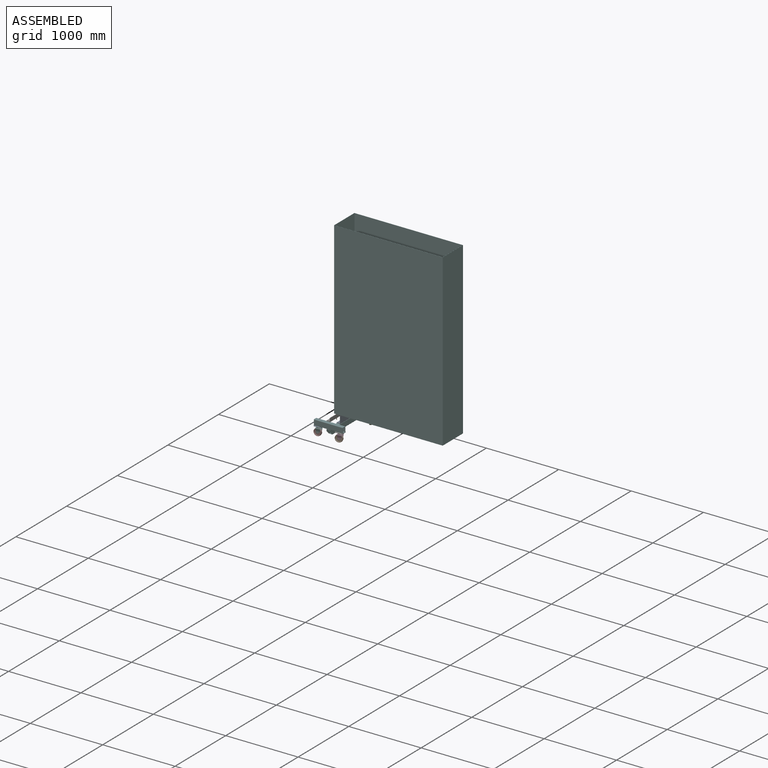
[diagram: assembled view]
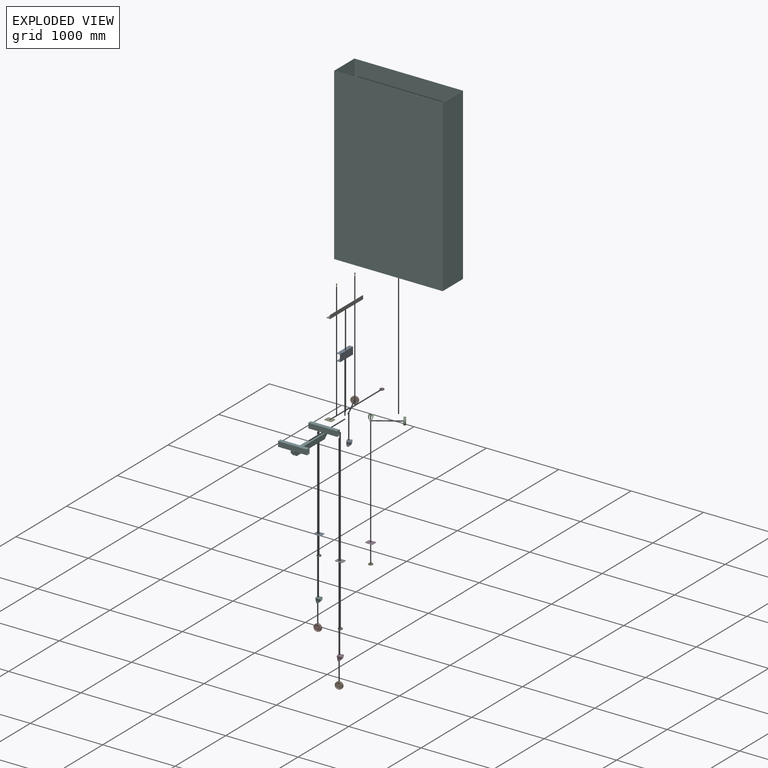
[diagram: exploded view]
GUIDED TOUR — MATED ASSEMBLY (Onshape document 137cd74a90b4f0a515ca259d, AutoMate assembly 137cd74a90b4f0a515ca259d_8e6a756ab5e0b427ab57e6c1_0fc6d9590e1579e8c9cf0c67_default)

This assembly has 22 components, labeled P0..P21 below (a component is one placed occurrence of a part; the same part can appear more than once), held together by 21 mates. A mate is a constraint between two components; its type names the relative motion it leaves free:
  FASTENED — locks the two components together rigidly (no relative motion),
  REVOLUTE — leaves rotation about the listed axis free (a hinge).
Axis/direction vectors are unit vectors and 'through' points are millimeter coordinates, both in the assembly's world frame.

MATES
  1. REVOLUTE "Revolute 2": P2 <-> P21, axis (0.000, 0.000, -1.000) through (-880.53, -330.40, -224.81) mm
  2. REVOLUTE "Revolute 4": P6 <-> P13, axis (0.000, 0.000, 1.000) through (-533.03, -330.40, -204.81) mm
  3. REVOLUTE "Revolute 5": P19 <-> P13, axis (0.000, 0.000, 1.000) through (-533.03, 269.60, -204.81) mm
  4. REVOLUTE "Revolute 2": P9 <-> P3, axis (0.000, 0.000, -1.000) through (-585.53, -330.40, -224.81) mm
  5. REVOLUTE "Revolute 1": P17 <-> P3, axis (0.180, -0.984, 0.000) through (-597.59, -347.85, -285.45) mm
  6. FASTENED "Fastened 2": P7 <-> P5, direction (0.000, 0.000, -1.000) through (-720.53, 149.60, -52.81) mm
  7. FASTENED "Fastened 7": P13 <-> P0, direction (0.000, 0.000, -1.000) through (-933.03, -330.40, -204.81) mm
  8. REVOLUTE "Revolute 3": P6 <-> P9, axis (0.000, 0.000, -1.000) through (-585.53, -330.40, -212.81) mm
  9. REVOLUTE "Revolute 3": P19 <-> P4, axis (0.000, 0.000, -1.000) through (-585.53, 269.60, -212.81) mm
  10. REVOLUTE "Revolute 3": P0 <-> P2, axis (0.000, 0.000, -1.000) through (-880.53, -330.40, -212.81) mm
  11. FASTENED "Fastened 1": P5 <-> P14, direction (0.000, 1.000, 0.000) through (-740.53, -30.40, -54.81) mm
  12. FASTENED "Fastened 6": P12 <-> P13, direction (0.000, 0.000, 1.000) through (-933.03, 269.60, -210.81) mm
  13. FASTENED "Fastened 3": P5 <-> P20, direction (0.000, 0.000, 1.000) through (-720.53, -210.40, -52.81) mm
  14. REVOLUTE "Revolute 3": P12 <-> P11, axis (0.000, 0.000, -1.000) through (-880.53, 269.60, -218.81) mm
  15. REVOLUTE "Revolute 2": P11 <-> P8, axis (0.000, 0.000, -1.000) through (-880.53, 269.60, -230.81) mm
  16. REVOLUTE "Revolute 1": P10 <-> P18, axis (0.834, 0.551, 0.000) through (-564.75, 265.34, -285.45) mm
  17. REVOLUTE "Revolute 1": P15 <-> P21, axis (0.074, -0.997, 0.000) through (-894.37, -346.47, -285.45) mm
  18. FASTENED "Fastened 4": P16 <-> P14, direction (0.000, 0.000, 1.000) through (-733.03, -110.40, -104.81) mm
  19. REVOLUTE "Revolute 2": P4 <-> P18, axis (0.000, 0.000, -1.000) through (-585.53, 269.60, -224.81) mm
  20. FASTENED "Fastened 5": P13 <-> P16, direction (0.000, 0.000, 1.000) through (-733.03, 49.60, -204.81) mm
  21. REVOLUTE "Revolute 1": P1 <-> P8, axis (0.402, -0.916, 0.000) through (-888.24, 249.84, -291.45) mm

ASSEMBLY ORDER
  1. P18 — the base component [order verified]
  2. P10 [order verified]
  3. P8 [order verified]
  4. P1 [order verified]
  5. P3 [order verified]
  6. P17 [order verified]
  7. P21 [order verified]
  8. P15 [order verified]
  9. P13 [order verified]
  10. P16 [order verified]
  11. P20 [order verified]
  12. P7 [order verified]
  13. P4 [order verified]
  14. P12 [order verified]
  15. P2 [order verified]
  16. P9 [order verified]
  17. P0 [order verified]
  18. P6 [order verified]
  19. P11 [order verified]
  20. P19 [order verified]
  21. P14 [order verified]
  22. P5 [order verified]
(P1, P10 verified with a relaxed clearance tolerance: the source model stores slight part interference there.)
Order-tag legend:
  [order verified] — this step's position reverses a verified removal order: the component was checked to insert without passing through the ones already placed.

Of the 22 components, 1 carries the full construction recipe — the FeatureScript program that regenerates the part's solid from scratch; the rest are supplied as boundary geometry only.
Because this assembly has more than 12 components, the tour below covers the 12 most significant ones individually (every recipe-attached component first, then the largest by part volume), in assembly order; the remaining 10 are summarized together in a grouped section at the end.
Each toured component is shown spotlighted twice — in the assembled view, then in the exploded view, where a leader line traces a displaced component back to its assembled socket (saturated green if recipe-attached, orange if geometry-only; every other component desaturated gray) — followed by its recipe or geometry summary and the mates that hold it.
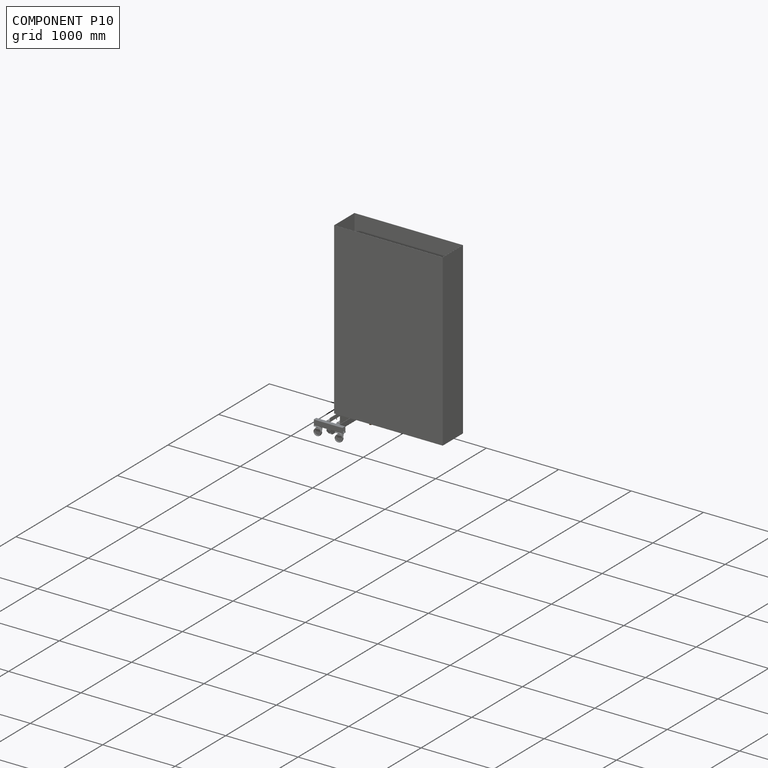
[diagram: component P10 — assembled]
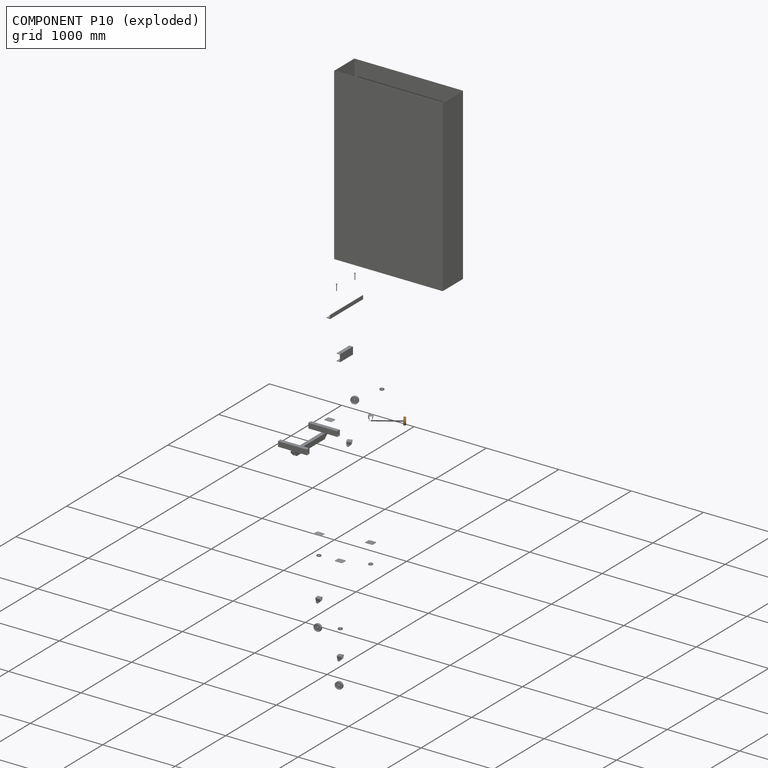
[diagram: component P10 — exploded]
COMPONENT P10 — geometry summary (no construction recipe available for this part):
  bounding box: 104.4 x 104.4 x 30.0 mm
  B-rep topology: 1 solid, 22 faces, 76 edges
  volume: 100161 mm^3 (31% of its bounding box)
  symmetry: 2-fold rotationally symmetric about the x axis; revolution-symmetric about the y axis through its bounding-box center; 2-fold rotationally symmetric about the z axis; mirror-symmetric across its x mid-plane, y mid-plane, z mid-plane
Held by: REVOLUTE mate "Revolute 1" to P18.
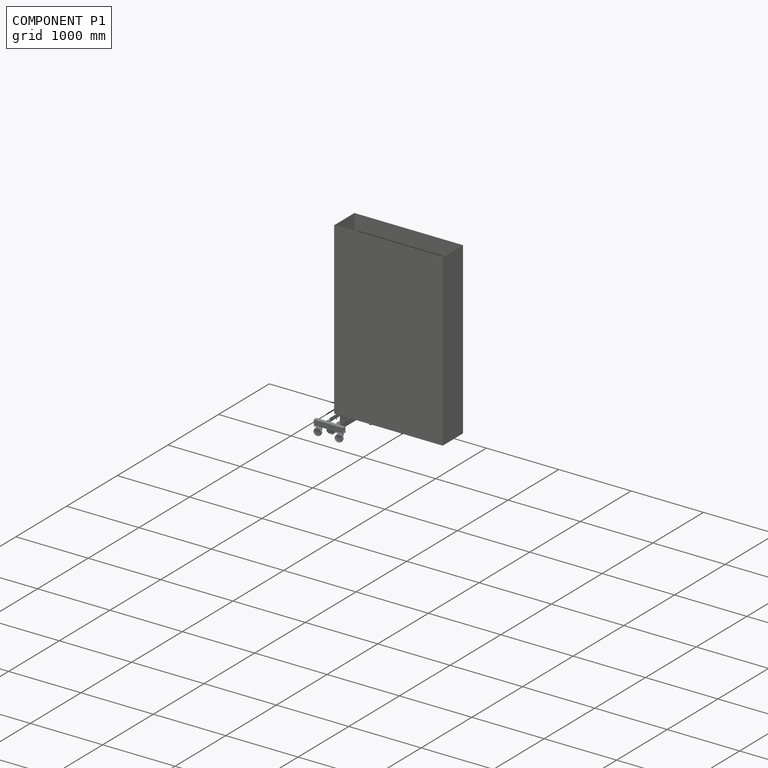
[diagram: component P1 — assembled]
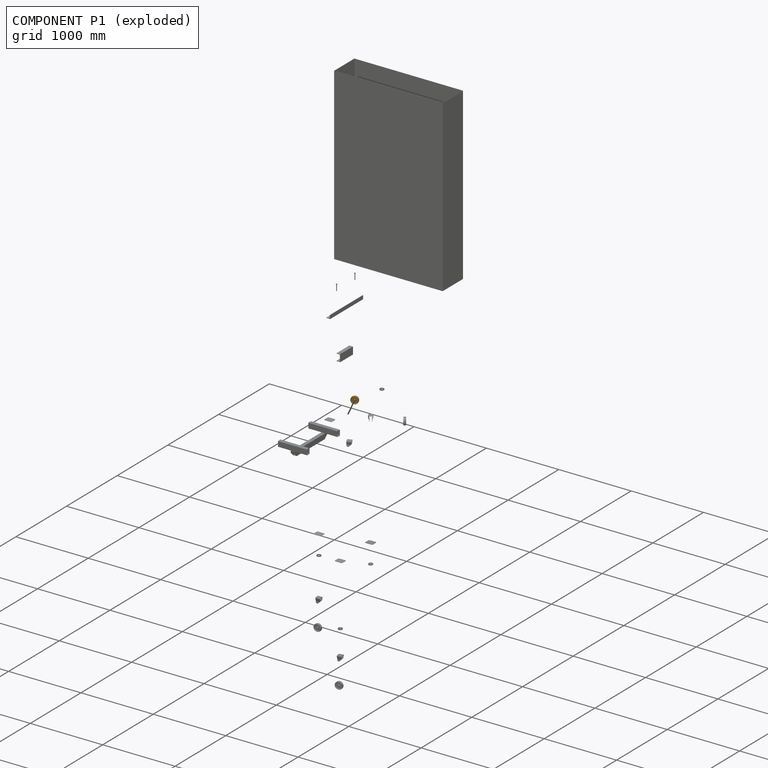
[diagram: component P1 — exploded]
COMPONENT P1 — geometry summary (no construction recipe available for this part):
  bounding box: 104.4 x 104.4 x 30.0 mm
  B-rep topology: 1 solid, 22 faces, 76 edges
  volume: 100161 mm^3 (31% of its bounding box)
  symmetry: 2-fold rotationally symmetric about the x axis; revolution-symmetric about the y axis through its bounding-box center; 2-fold rotationally symmetric about the z axis; mirror-symmetric across its x mid-plane, y mid-plane, z mid-plane
Held by: REVOLUTE mate "Revolute 1" to P8.
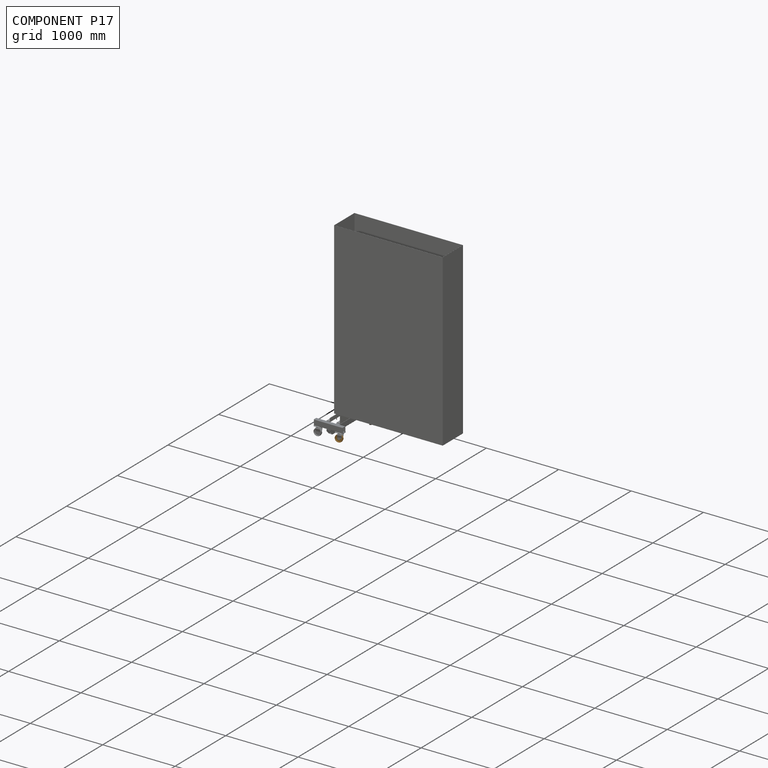
[diagram: component P17 — assembled]
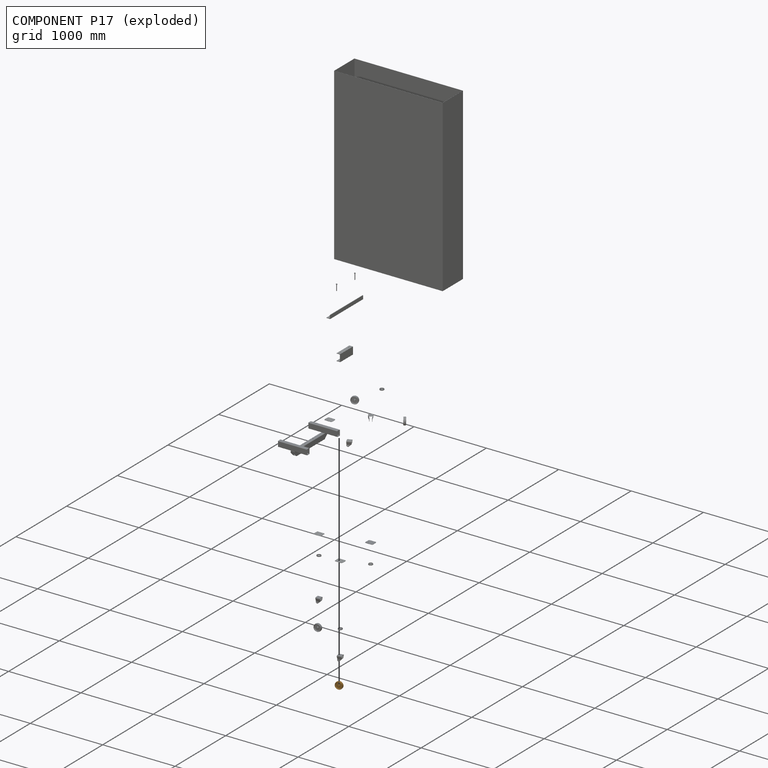
[diagram: component P17 — exploded]
COMPONENT P17 — geometry summary (no construction recipe available for this part):
  bounding box: 104.4 x 104.4 x 30.0 mm
  B-rep topology: 1 solid, 22 faces, 76 edges
  volume: 100161 mm^3 (31% of its bounding box)
  symmetry: 2-fold rotationally symmetric about the x axis; revolution-symmetric about the y axis through its bounding-box center; 2-fold rotationally symmetric about the z axis; mirror-symmetric across its x mid-plane, y mid-plane, z mid-plane
Held by: REVOLUTE mate "Revolute 1" to P3.
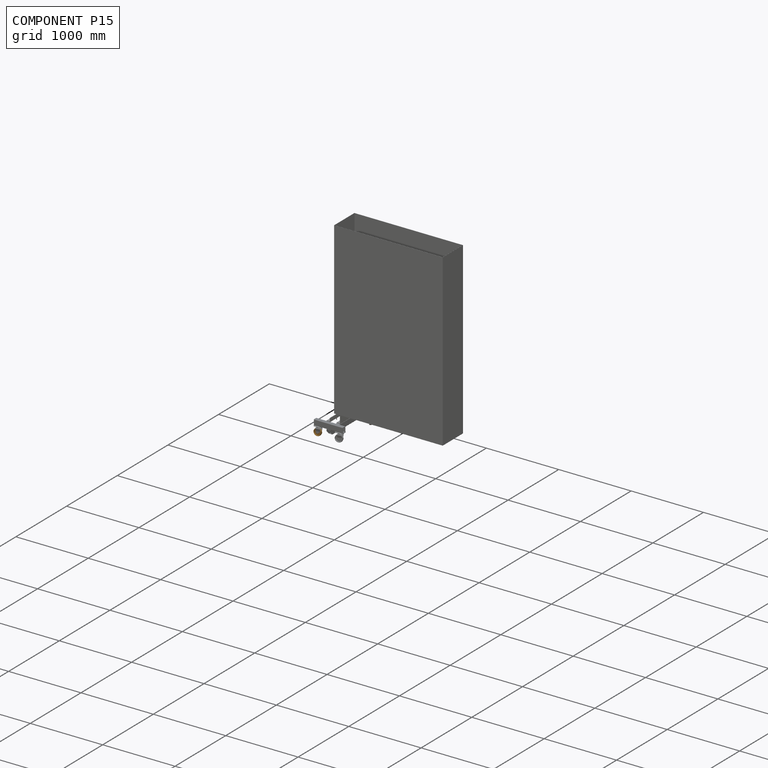
[diagram: component P15 — assembled]
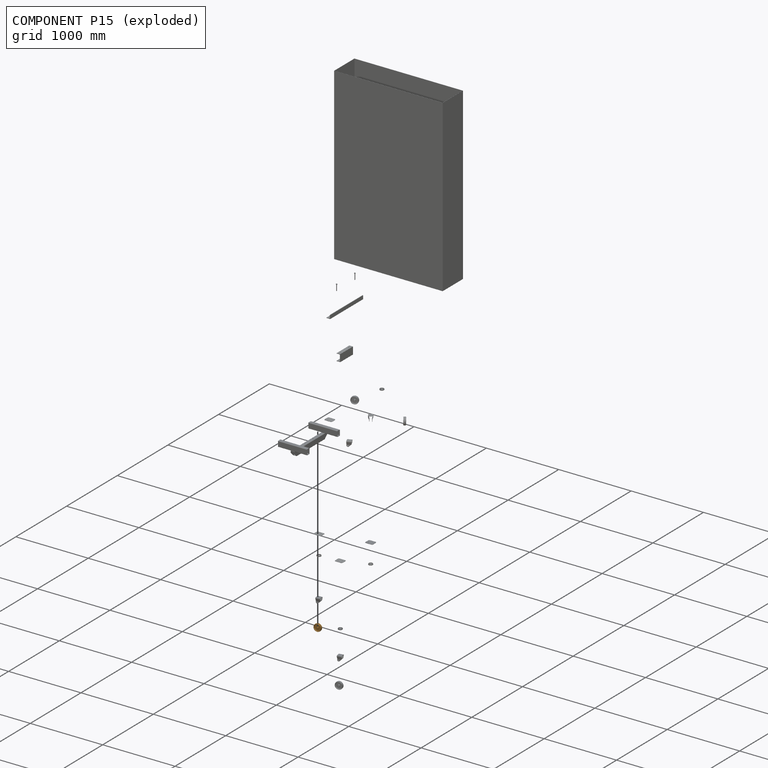
[diagram: component P15 — exploded]
COMPONENT P15 — geometry summary (no construction recipe available for this part):
  bounding box: 104.4 x 104.4 x 30.0 mm
  B-rep topology: 1 solid, 22 faces, 76 edges
  volume: 100161 mm^3 (31% of its bounding box)
  symmetry: 2-fold rotationally symmetric about the x axis; revolution-symmetric about the y axis through its bounding-box center; 2-fold rotationally symmetric about the z axis; mirror-symmetric across its x mid-plane, y mid-plane, z mid-plane
Held by: REVOLUTE mate "Revolute 1" to P21.
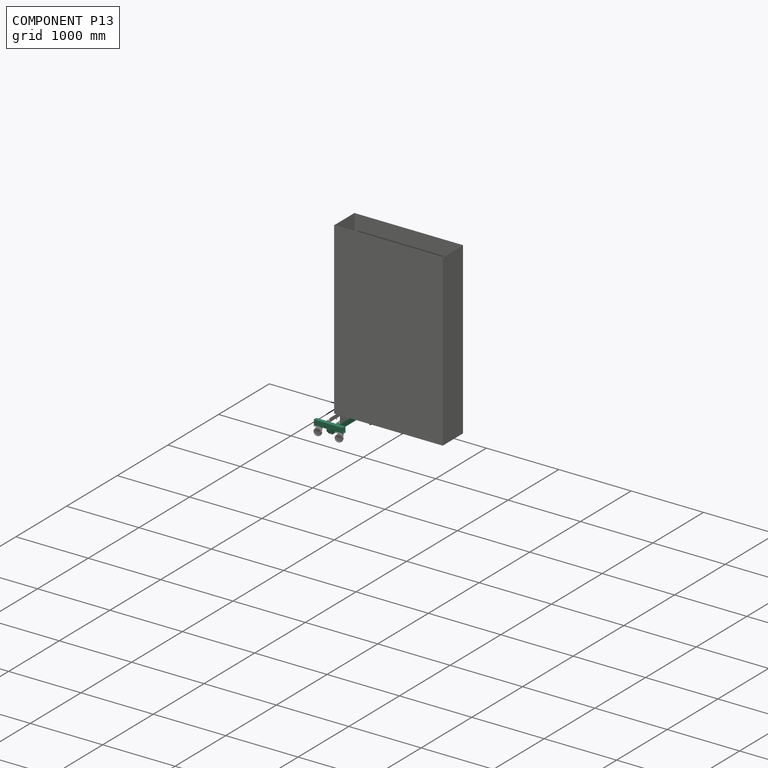
[diagram: component P13 — assembled]
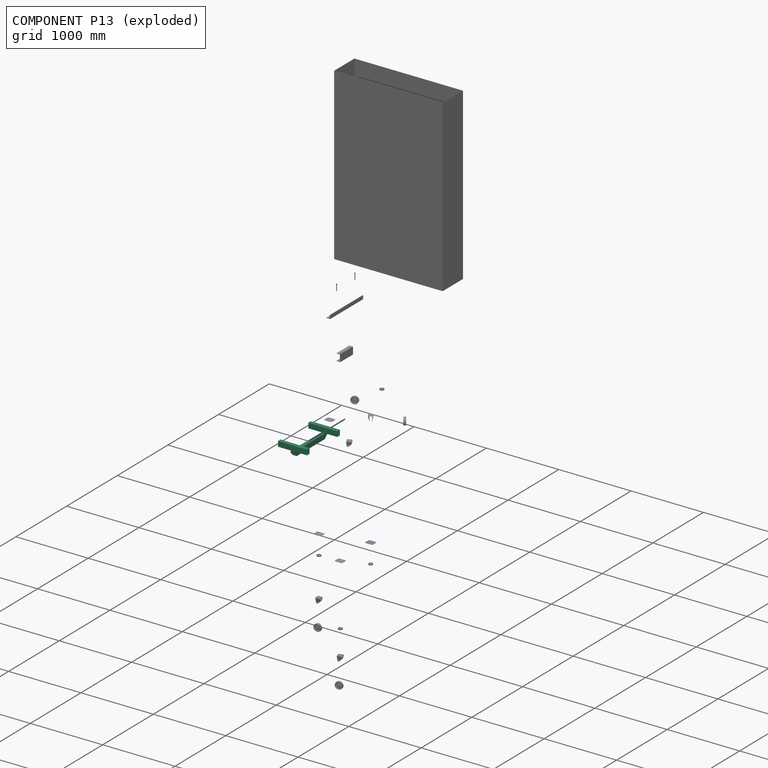
[diagram: component P13 — exploded]
COMPONENT P13 — recipe-attached (CADFS 00106377, mesh-verified: the recipe's output STEP matches this component's geometry to below the mesh-comparison resolution (tessellation chordal tolerance ~1.17 mm)).
Held by: REVOLUTE mate "Revolute 4" to P6; REVOLUTE mate "Revolute 5" to P19; FASTENED mate "Fastened 7" to P0; FASTENED mate "Fastened 6" to P12; FASTENED mate "Fastened 5" to P16.
Construction recipe (FeatureScript — the CAD program that rebuilds this solid; sketch coordinates are in the units given by the * unit suffixes, e.g. mm):

FeatureScript 1511;
import(path : "onshape/std/geometry.fs", version : "1511.0");
import(path : "onshape/std/common.fs", version : "1511.0");
const mm = millimeter;
const VERTEX = EntityType.VERTEX;
const EDGE = EntityType.EDGE;
const FACE = EntityType.FACE;
const BODY = EntityType.BODY;
function v(x, y){return vector(x, y);}
function OD(order){return orderDisambiguation(order);}
function OSD(set){return originalSetDisambiguation(set);}
function TD(topology){return topologyDisambiguation(topology);}
function TDD(query){return trueDependencyDisambiguation(query);}
function sQuery(a, b, c) {return sketchEntityQuery(a, b, c);}

annotation { "Feature Type Name" : "Feature", "Feature Type Description" : "" }
export const myFeature = defineFeature(function(context is Context, id is Id, definition is map)
    precondition{}
    {
        {
            var Q0;
            Q0=qCreatedBy(makeId("Front.planeOp"),FACE);
            var sketch = newSketch(context, id + "F0", { "sketchPlane" : qUnion([Q0])});
            skLineSegment(sketch, "E0.bottom", {"start": v(20, -37.5) * mm, "end": v(-20, -37.5) * mm});
            skLineSegment(sketch, "E0.top", {"start": v(20, 37.5) * mm, "end": v(-20, 37.5) * mm});
            skLineSegment(sketch, "E0.left", {"start": v(25, -32.5) * mm, "end": v(25, 32.5) * mm});
            skLineSegment(sketch, "E0.right", {"start": v(-25, -32.5) * mm, "end": v(-25, 32.5) * mm});
            skPoint(sketch, "E0.middle", {"position": v(0, 0) * mm});
            skPoint(sketch, "E1.visualSharp", {"position": v(-25, 37.5) * mm});
            skArc(sketch, "E1.filletArc", {"start": v(-20, 37.5) * mm, "mid": v(-23.54, 36.04) * mm, "end": v(-25, 32.5) * mm});
            skPoint(sketch, "E2.visualSharp", {"position": v(25, 37.5) * mm});
            skArc(sketch, "E2.filletArc", {"start": v(25, 32.5) * mm, "mid": v(23.54, 36.04) * mm, "end": v(20, 37.5) * mm});
            skPoint(sketch, "E3.visualSharp", {"position": v(25, -37.5) * mm});
            skArc(sketch, "E3.filletArc", {"start": v(20, -37.5) * mm, "mid": v(23.54, -36.04) * mm, "end": v(25, -32.5) * mm});
            skPoint(sketch, "E4.visualSharp", {"position": v(-25, -37.5) * mm});
            skArc(sketch, "E4.filletArc", {"start": v(-25, -32.5) * mm, "mid": v(-23.54, -36.04) * mm, "end": v(-20, -37.5) * mm});
            skLineSegment(sketch, "E5.0", {"start": v(-20, -32.5) * mm, "end": v(-20, 32.5) * mm});
            skLineSegment(sketch, "E5.1", {"start": v(20, -32.5) * mm, "end": v(-20, -32.5) * mm});
            skLineSegment(sketch, "E5.2", {"start": v(20, -32.5) * mm, "end": v(20, 32.5) * mm});
            skLineSegment(sketch, "E5.3", {"start": v(20, 32.5) * mm, "end": v(-20, 32.5) * mm});
            skSolve(sketch);
        }
        {
            var Q0;
            Q0 = qSketchRegion(id + "F0", true);
            extrude(context, id + "F1", {"entities" : qUnion([Q0]), "oppositeDirection" : true, "depth" : 650 * mm});
        }
        {
            var Q0;
            Q0=makeQuery(id+"F1.opExtrude","SWEPT_FACE",FACE,{"disambiguationData":[OSD([sQuery(id+"F0.wireOp",EDGE,"E0.top")])]});
            var sketch = newSketch(context, id + "F2", { "sketchPlane" : qUnion([Q0])});
            skPoint(sketch, "E6", {"position": v(0, 0) * mm});
            skLineSegment(sketch, "E7", {"start": v(-20, 325) * mm, "end": v(20, 325) * mm, "construction": true});
            skLineSegment(sketch, "E8", {"start": v(0, 325) * mm, "end": v(0, 245) * mm, "construction": true});
            skLineSegment(sketch, "E9", {"start": v(0, 325) * mm, "end": v(0, 405) * mm, "construction": true});
            skCircle(sketch, "E10", {"center": v(0, 245) * mm, "radius": 6 * mm});
            skCircle(sketch, "E11", {"center": v(0, 405) * mm, "radius": 6 * mm});
            skSolve(sketch);
        }
        {
            var Q0;
            Q0 = qSketchRegion(id + "F2", true);
            extrude(context, id + "F3", {"entities" : qUnion([Q0]), "operationType" : NewBodyOperationType.REMOVE, "endBound" : BoundingType.UP_TO_NEXT, "oppositeDirection" : true, "depth" : 25 * mm});
        }
        {
            var Q0;
            Q0=makeQuery(id+"F1.opExtrude","SWEPT_FACE",FACE,{"disambiguationData":[OSD([sQuery(id+"F0.wireOp",EDGE,"E0.top")])]});
            var sketch = newSketch(context, id + "F4", { "sketchPlane" : qUnion([Q0])});
            skLineSegment(sketch, "E12.bottom", {"start": v(200, 0) * mm, "end": v(-200, 0) * mm, "construction": true});
            skLineSegment(sketch, "E12.top", {"start": v(200, 50) * mm, "end": v(-200, 50) * mm, "construction": true});
            skLineSegment(sketch, "E12.left", {"start": v(200, 0) * mm, "end": v(200, 50) * mm, "construction": true});
            skLineSegment(sketch, "E12.right", {"start": v(-200, 0) * mm, "end": v(-200, 50) * mm, "construction": true});
            skPoint(sketch, "E12.middle", {"position": v(0, 25) * mm});
            skLineSegment(sketch, "E13", {"start": v(0, 50) * mm, "end": v(0, 0) * mm, "construction": true});
            skLineSegment(sketch, "E14", {"start": v(-20, 325) * mm, "end": v(20, 325) * mm, "construction": true});
            skSolve(sketch);
        }
        {
            var Q0;
            Q0=qCreatedBy(makeId("Right.planeOp"),FACE);
            var sketch = newSketch(context, id + "F5", { "sketchPlane" : qUnion([Q0])});
            skLineSegment(sketch, "E15.bottom", {"start": v(5, 37.5) * mm, "end": v(45, 37.5) * mm});
            skLineSegment(sketch, "E15.top", {"start": v(5, 112.5) * mm, "end": v(45, 112.5) * mm});
            skLineSegment(sketch, "E15.left", {"start": v(0, 42.5) * mm, "end": v(0, 107.5) * mm});
            skLineSegment(sketch, "E15.right", {"start": v(50, 42.5) * mm, "end": v(50, 107.5) * mm});
            skPoint(sketch, "E16.visualSharp", {"position": v(50, 112.5) * mm});
            skArc(sketch, "E16.filletArc", {"start": v(50, 107.5) * mm, "mid": v(48.54, 111.04) * mm, "end": v(45, 112.5) * mm});
            skPoint(sketch, "E17.visualSharp", {"position": v(0, 37.5) * mm});
            skArc(sketch, "E17.filletArc", {"start": v(0, 42.5) * mm, "mid": v(1.46, 38.96) * mm, "end": v(5, 37.5) * mm});
            skPoint(sketch, "E18.visualSharp", {"position": v(50, 37.5) * mm});
            skArc(sketch, "E18.filletArc", {"start": v(45, 37.5) * mm, "mid": v(48.54, 38.96) * mm, "end": v(50, 42.5) * mm});
            skPoint(sketch, "E19.visualSharp", {"position": v(0, 112.5) * mm});
            skArc(sketch, "E19.filletArc", {"start": v(5, 112.5) * mm, "mid": v(1.46, 111.04) * mm, "end": v(0, 107.5) * mm});
            skLineSegment(sketch, "E20.0", {"start": v(5, 42.5) * mm, "end": v(5, 107.5) * mm});
            skLineSegment(sketch, "E20.1", {"start": v(5, 42.5) * mm, "end": v(45, 42.5) * mm});
            skLineSegment(sketch, "E20.2", {"start": v(45, 42.5) * mm, "end": v(45, 107.5) * mm});
            skLineSegment(sketch, "E20.3", {"start": v(5, 107.5) * mm, "end": v(45, 107.5) * mm});
            skSolve(sketch);
        }
        {
            var Q0;
            Q0 = qSketchRegion(id + "F5", true);
            extrude(context, id + "F6", {"entities" : qUnion([Q0]), "operationType" : NewBodyOperationType.ADD, "endBound" : BoundingType.SYMMETRIC, "depth" : 400 * mm});
        }
        {
            var Q0;
            Q0=sQuery(id+"F4.wireOp",VERTEX,"E14.start");
            var Q1;
            Q1=makeQuery(id+"F1.opExtrude","CAP_FACE",FACE,{"disambiguationData":[OSD([sQuery(id+"F0.wireOp",EDGE,"E0.bottom"),sQuery(id+"F0.wireOp",EDGE,"E0.top"),sQuery(id+"F0.wireOp",EDGE,"E0.left"),sQuery(id+"F0.wireOp",EDGE,"E0.right"),sQuery(id+"F0.wireOp",EDGE,"E1.filletArc"),sQuery(id+"F0.wireOp",EDGE,"E2.filletArc"),sQuery(id+"F0.wireOp",EDGE,"E3.filletArc"),sQuery(id+"F0.wireOp",EDGE,"E4.filletArc"),sQuery(id+"F0.wireOp",EDGE,"E5.0"),sQuery(id+"F0.wireOp",EDGE,"E5.1"),sQuery(id+"F0.wireOp",EDGE,"E5.2"),sQuery(id+"F0.wireOp",EDGE,"E5.3")])],"isStart":true});
            cPlane(context, id + "F7", {"entities" : qUnion([Q0, Q1]), "cplaneType" : CPlaneType.PLANE_POINT, "offset" : 25 * mm, "width" : 150 * mm, "height" : 150 * mm});
        }
        {
            var Q0;
            Q0=makeQuery(id+"F1.opExtrude","SWEPT_BODY",BODY,{"disambiguationData":[OSD([sQuery(id+"F0.wireOp",EDGE,"E0.bottom"),sQuery(id+"F0.wireOp",EDGE,"E0.top"),sQuery(id+"F0.wireOp",EDGE,"E0.left"),sQuery(id+"F0.wireOp",EDGE,"E0.right"),sQuery(id+"F0.wireOp",EDGE,"E1.filletArc"),sQuery(id+"F0.wireOp",EDGE,"E2.filletArc"),sQuery(id+"F0.wireOp",EDGE,"E3.filletArc"),sQuery(id+"F0.wireOp",EDGE,"E4.filletArc"),sQuery(id+"F0.wireOp",EDGE,"E5.0"),sQuery(id+"F0.wireOp",EDGE,"E5.1"),sQuery(id+"F0.wireOp",EDGE,"E5.2"),sQuery(id+"F0.wireOp",EDGE,"E5.3")])]});
            var Q1;
            Q1=qCreatedBy(id+"F7.planeOp",FACE);
            mirror(context, id + "F8", {"operationType" : NewBodyOperationType.ADD, "entities" : qUnion([Q0]), "mirrorPlane" : qUnion([Q1])});
        }
        {
            var Q0;
            Q0=makeQuery(id+"F1.opExtrude","CAP_EDGE",EDGE,{"disambiguationData":[OSD([sQuery(id+"F0.wireOp",EDGE,"E0.bottom")])],"isStart":true});
            chamfer(context, id + "F9", {"entities" : qUnion([Q0]), "width" : 50 * mm});
        }
        {
            var Q0;
            Q0=makeQuery(id+"F1.opExtrude","CAP_EDGE",EDGE,{"disambiguationData":[OSD([sQuery(id+"F0.wireOp",EDGE,"E0.bottom")])],"isStart":false});
            chamfer(context, id + "F10", {"entities" : qUnion([Q0]), "width" : 50 * mm});
        }
    });
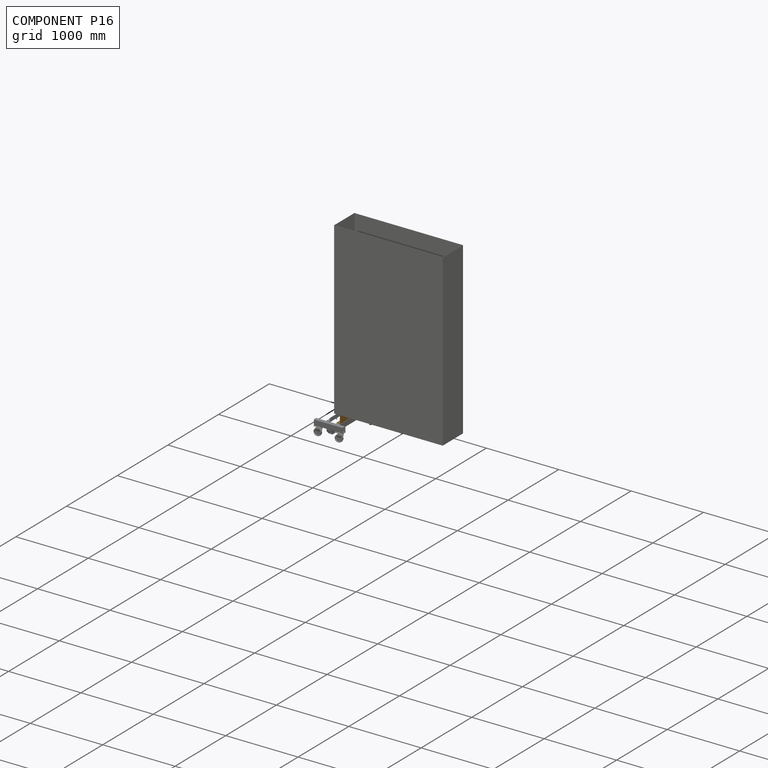
[diagram: component P16 — assembled]
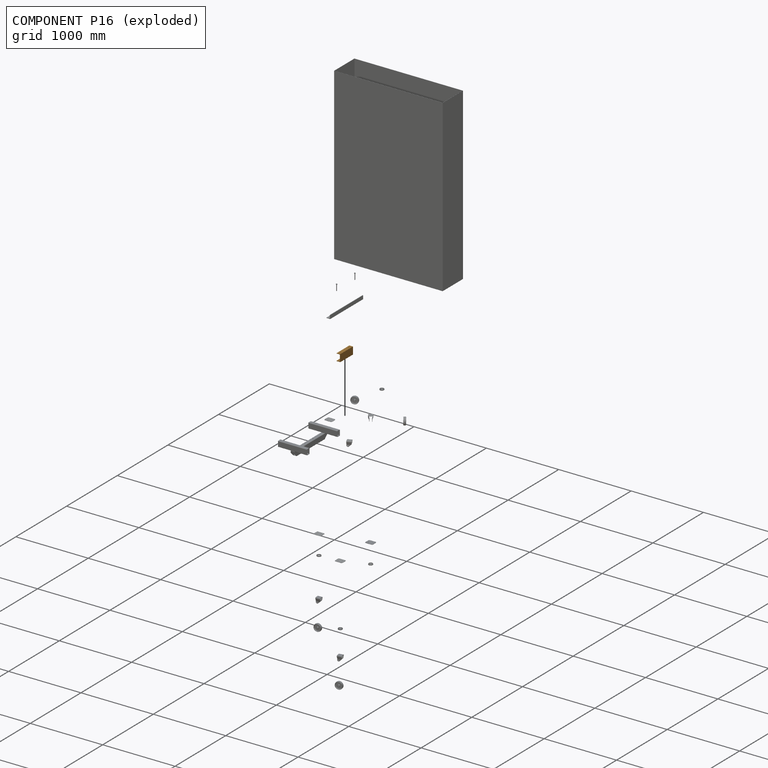
[diagram: component P16 — exploded]
COMPONENT P16 — geometry summary (no construction recipe available for this part):
  bounding box: 250.0 x 100.0 x 50.0 mm
  B-rep topology: 1 solid, 16 faces, 88 edges
  volume: 281497 mm^3 (23% of its bounding box)
  symmetry: 2-fold rotationally symmetric about the x axis; mirror-symmetric across its y mid-plane, z mid-plane
Held by: FASTENED mate "Fastened 4" to P14; FASTENED mate "Fastened 5" to P13.
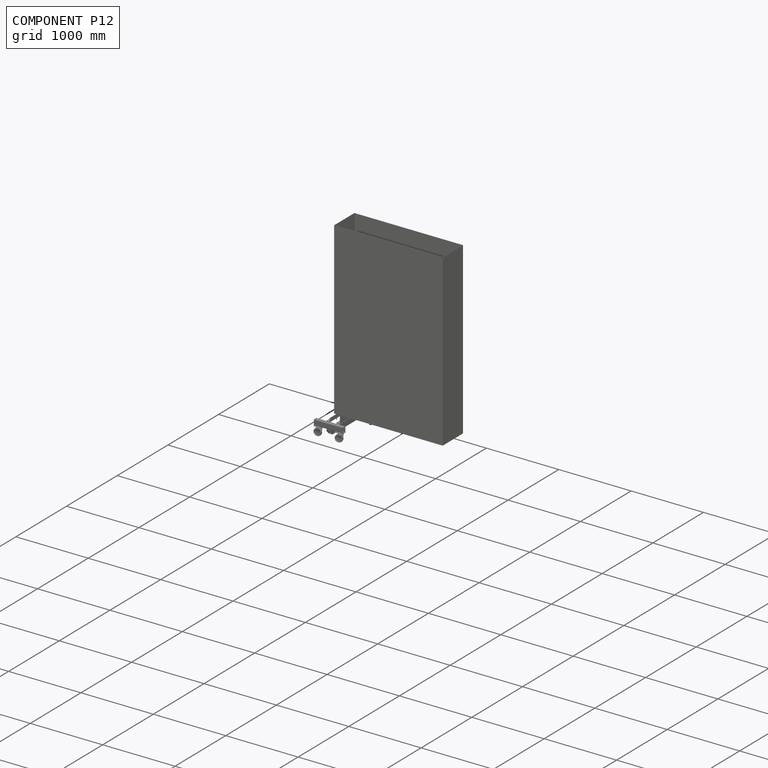
[diagram: component P12 — assembled]
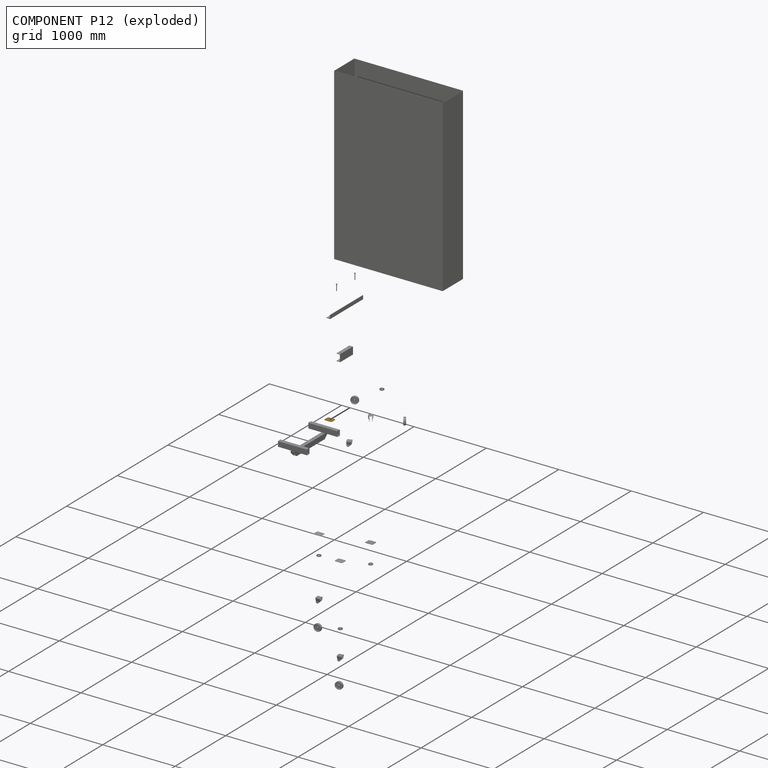
[diagram: component P12 — exploded]
COMPONENT P12 — geometry summary (no construction recipe available for this part):
  bounding box: 105.0 x 85.0 x 8.0 mm
  B-rep topology: 1 solid, 31 faces, 160 edges
  volume: 29507 mm^3 (41% of its bounding box)
  symmetry: 2-fold rotationally symmetric about the z axis; mirror-symmetric across its x mid-plane, y mid-plane
Held by: FASTENED mate "Fastened 6" to P13; REVOLUTE mate "Revolute 3" to P11.
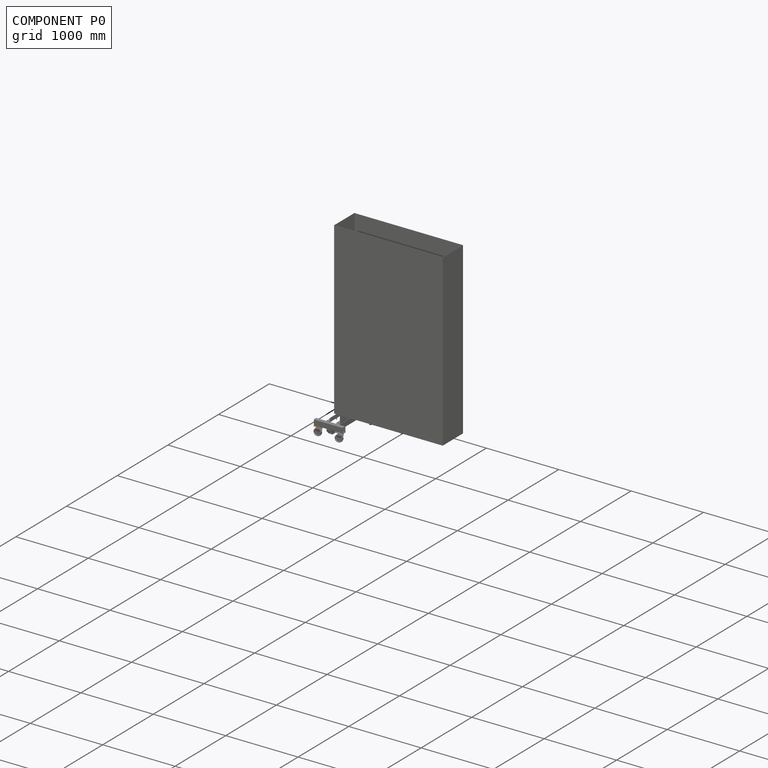
[diagram: component P0 — assembled]
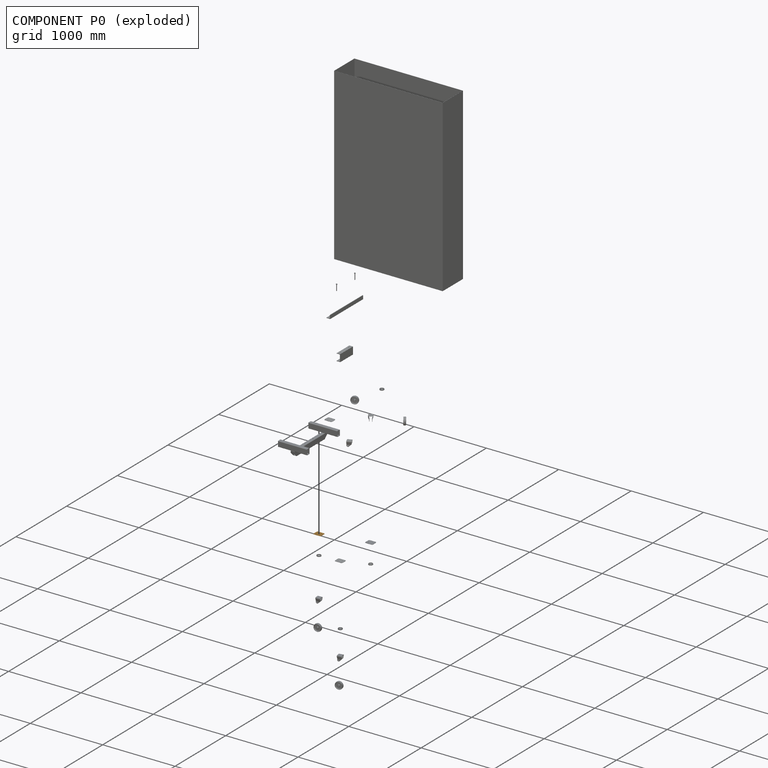
[diagram: component P0 — exploded]
COMPONENT P0 — geometry summary (no construction recipe available for this part):
  bounding box: 105.0 x 85.0 x 8.0 mm
  B-rep topology: 1 solid, 31 faces, 160 edges
  volume: 29507 mm^3 (41% of its bounding box)
  symmetry: 2-fold rotationally symmetric about the z axis; mirror-symmetric across its x mid-plane, y mid-plane
Held by: FASTENED mate "Fastened 7" to P13; REVOLUTE mate "Revolute 3" to P2.
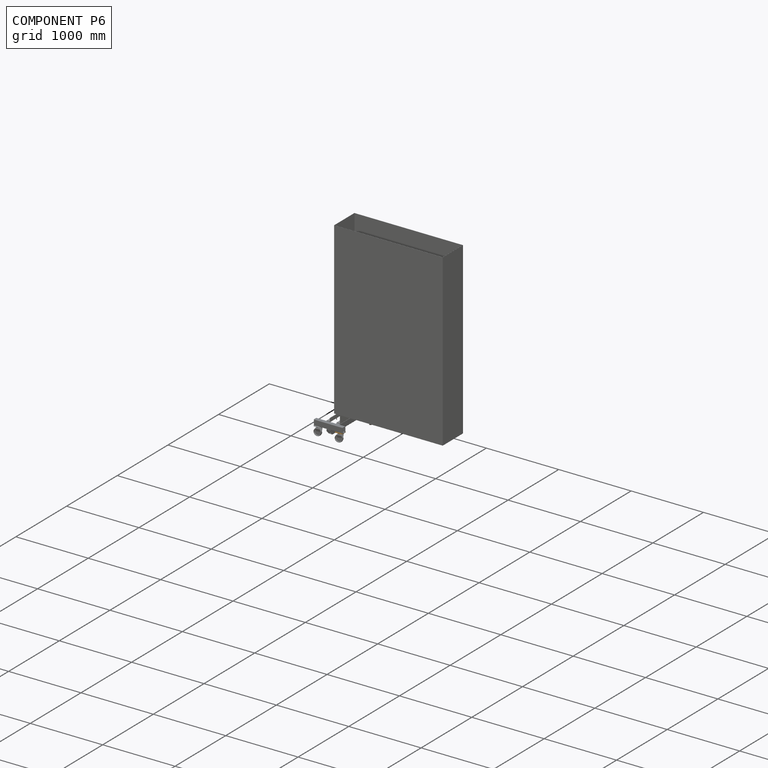
[diagram: component P6 — assembled]
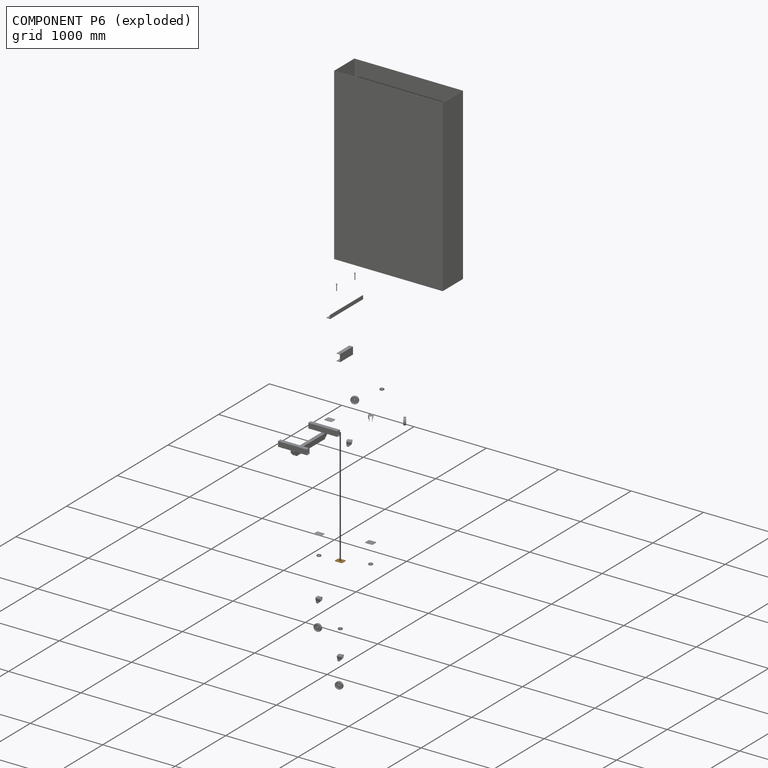
[diagram: component P6 — exploded]
COMPONENT P6 — geometry summary (no construction recipe available for this part):
  bounding box: 105.0 x 85.0 x 8.0 mm
  B-rep topology: 1 solid, 31 faces, 160 edges
  volume: 29507 mm^3 (41% of its bounding box)
  symmetry: 2-fold rotationally symmetric about the z axis; mirror-symmetric across its x mid-plane, y mid-plane
Held by: REVOLUTE mate "Revolute 4" to P13; REVOLUTE mate "Revolute 3" to P9.
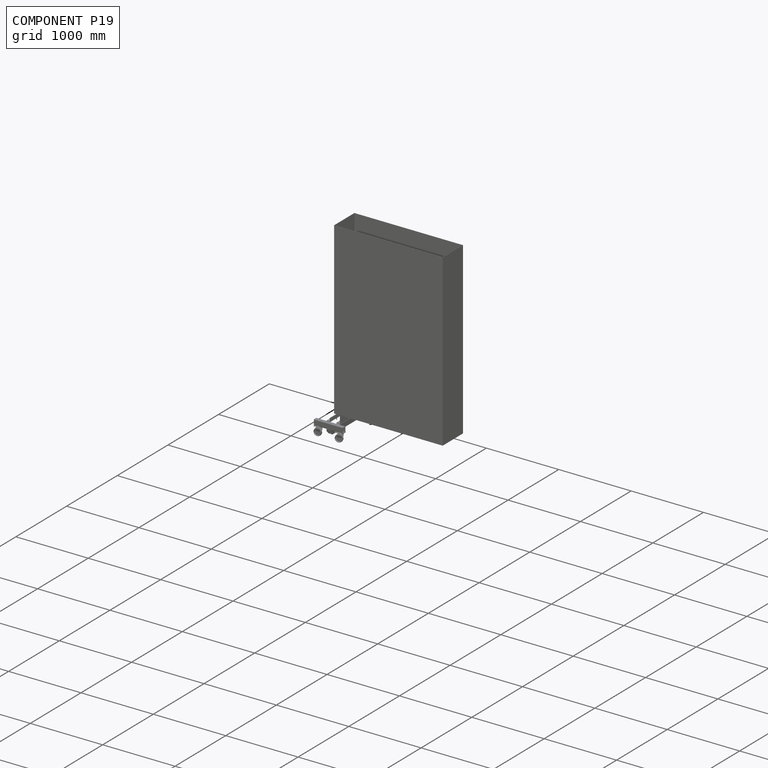
[diagram: component P19 — assembled]
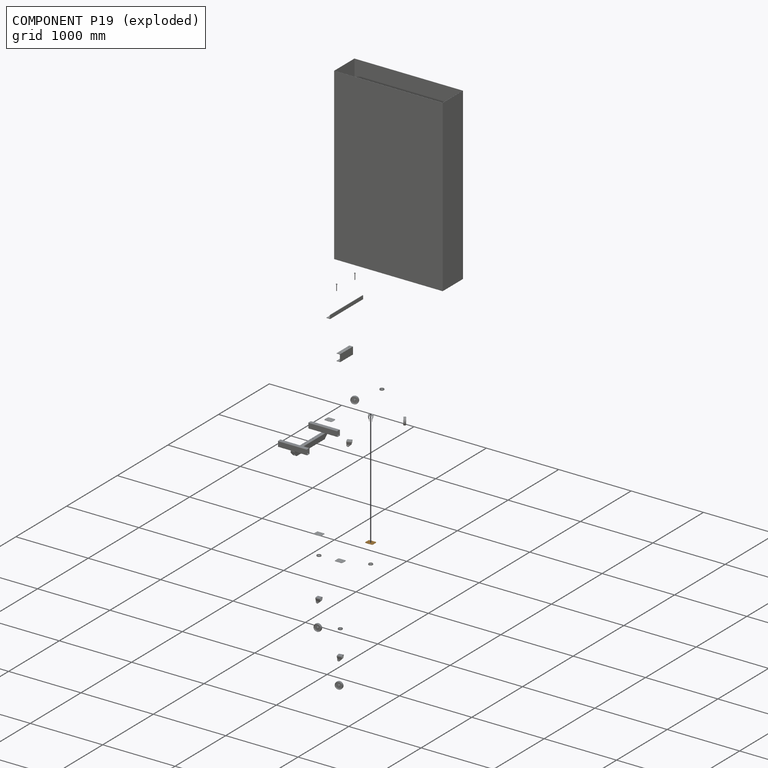
[diagram: component P19 — exploded]
COMPONENT P19 — geometry summary (no construction recipe available for this part):
  bounding box: 105.0 x 85.0 x 8.0 mm
  B-rep topology: 1 solid, 31 faces, 160 edges
  volume: 29507 mm^3 (41% of its bounding box)
  symmetry: 2-fold rotationally symmetric about the z axis; mirror-symmetric across its x mid-plane, y mid-plane
Held by: REVOLUTE mate "Revolute 5" to P13; REVOLUTE mate "Revolute 3" to P4.
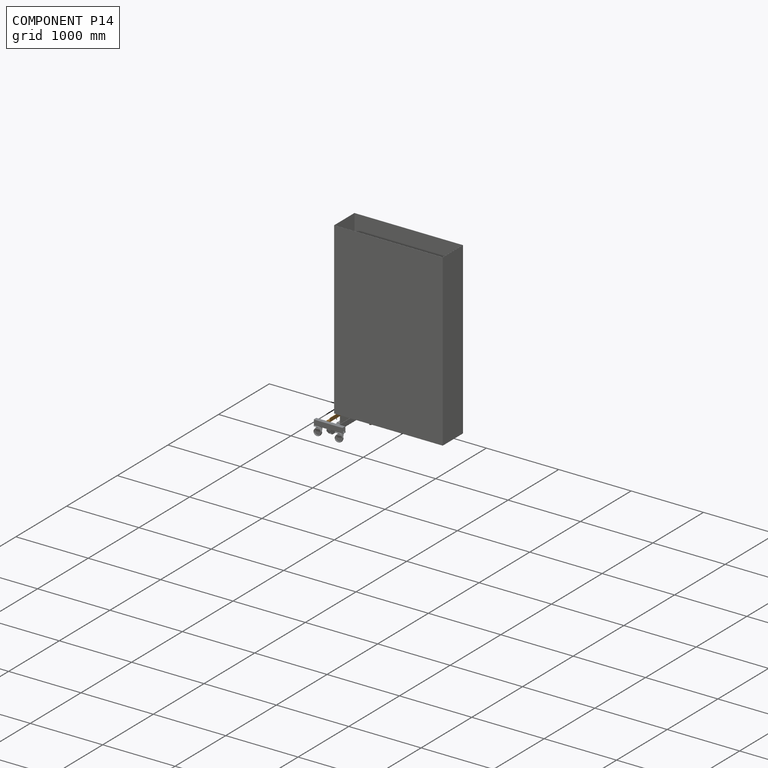
[diagram: component P14 — assembled]
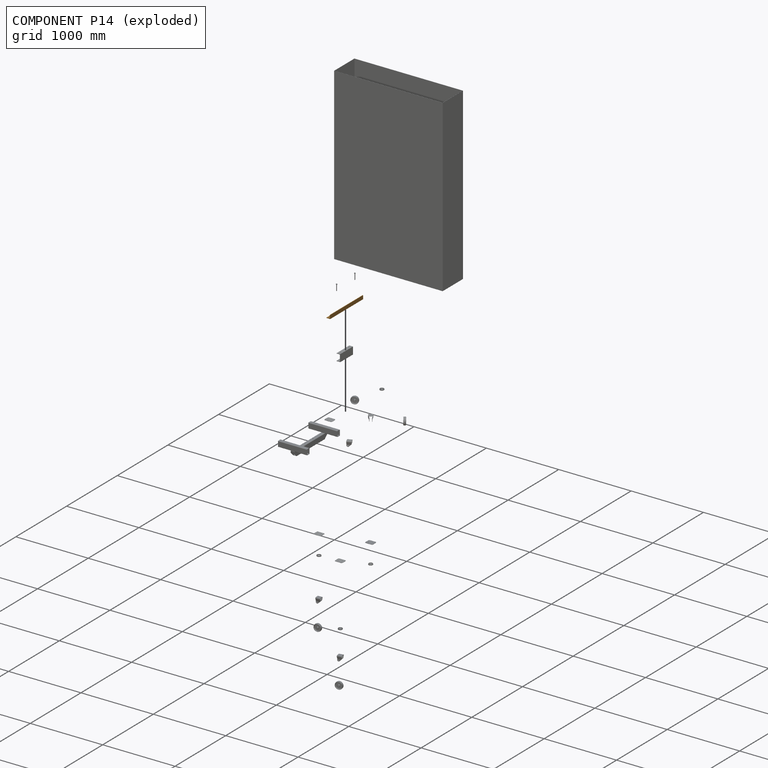
[diagram: component P14 — exploded]
COMPONENT P14 — geometry summary (no construction recipe available for this part):
  bounding box: 650.0 x 50.0 x 50.0 mm
  B-rep topology: 1 solid, 27 faces, 178 edges
  volume: 350573 mm^3 (22% of its bounding box)
  symmetry: mirror-symmetric across its y mid-plane
Held by: FASTENED mate "Fastened 1" to P5; FASTENED mate "Fastened 4" to P16.
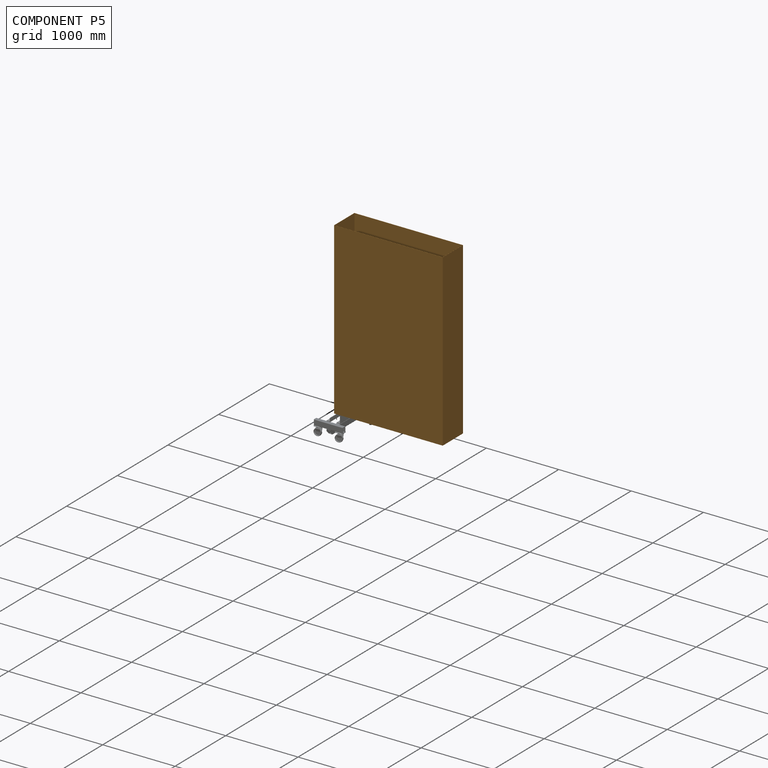
[diagram: component P5 — assembled]
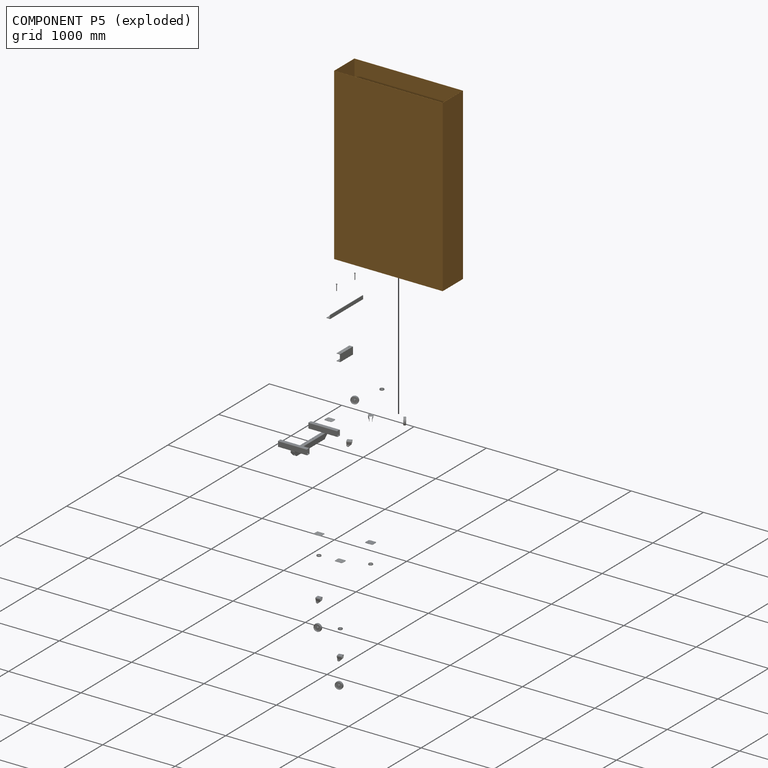
[diagram: component P5 — exploded]
COMPONENT P5 — geometry summary (no construction recipe available for this part):
  bounding box: 2352.0 x 1500.0 x 400.0 mm
  B-rep topology: 1 solid, 15 faces, 72 edges
  volume: 19021772 mm^3 (1% of its bounding box)
  symmetry: 2-fold rotationally symmetric about the z axis; mirror-symmetric across its x mid-plane, y mid-plane
Held by: FASTENED mate "Fastened 2" to P7; FASTENED mate "Fastened 1" to P14; FASTENED mate "Fastened 3" to P20.
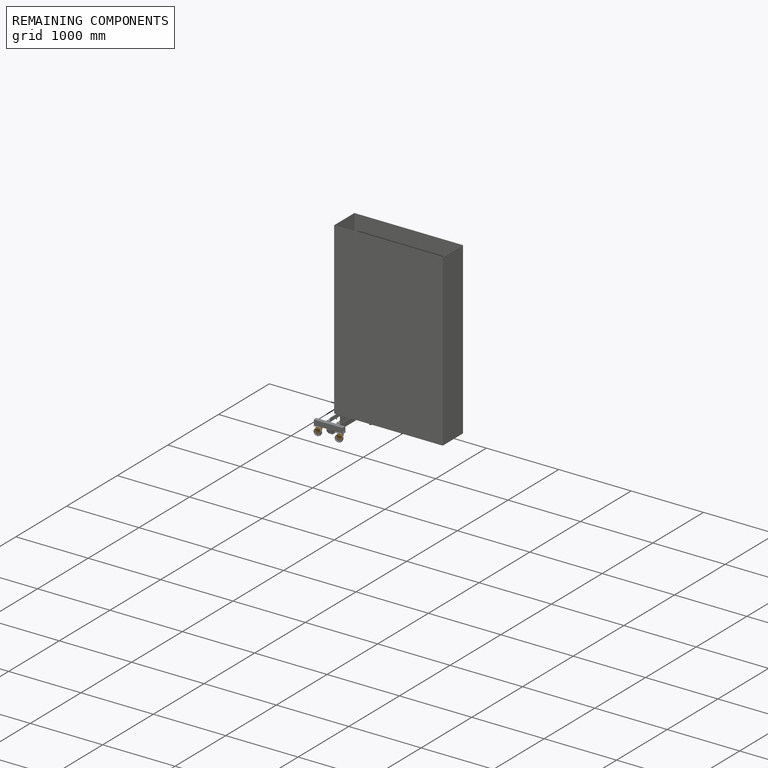
[diagram: remaining components — assembled]
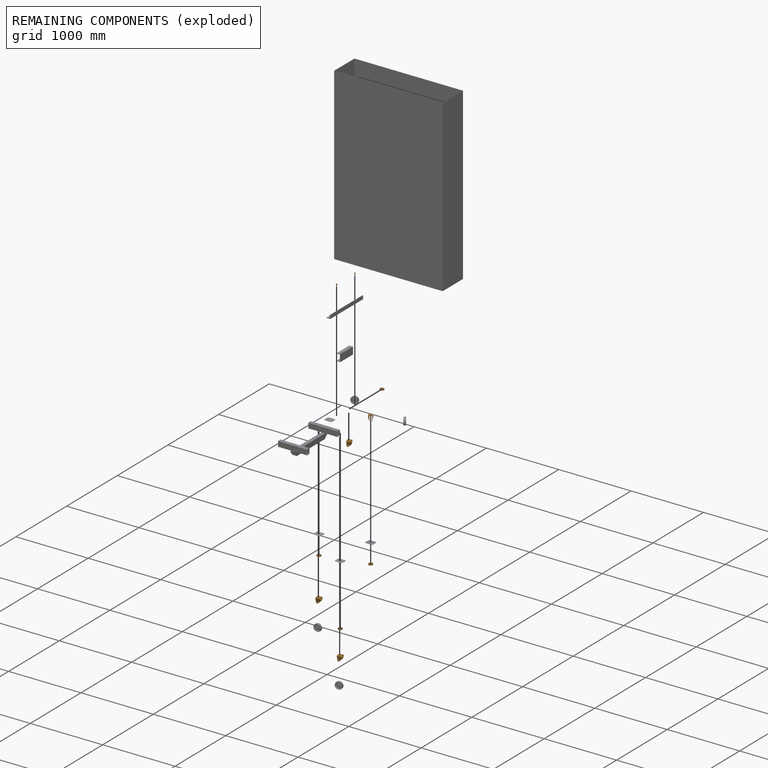
[diagram: remaining components — exploded]
REMAINING COMPONENTS (grouped) — the 10 components below fall outside the per-component tour by the significance rule stated above; both spotlight views highlight the whole group.
  P18: bounding box 75.7 x 60.1 x 59.5 mm, volume 21769 mm^3. Held by: REVOLUTE mate "Revolute 1" to P10; REVOLUTE mate "Revolute 2" to P4.
  P8: bounding box 75.7 x 60.1 x 59.5 mm, volume 21769 mm^3. Held by: REVOLUTE mate "Revolute 2" to P11; REVOLUTE mate "Revolute 1" to P1.
  P3: bounding box 75.7 x 60.1 x 59.5 mm, volume 21769 mm^3. Held by: REVOLUTE mate "Revolute 2" to P9; REVOLUTE mate "Revolute 1" to P17.
  P21: bounding box 75.7 x 60.1 x 59.5 mm, volume 21769 mm^3. Held by: REVOLUTE mate "Revolute 2" to P2; REVOLUTE mate "Revolute 1" to P15.
  P20: bounding box 88.0 x 18.3 x 17.1 mm, volume 5795 mm^3. Held by: FASTENED mate "Fastened 3" to P5.
  P7: bounding box 88.0 x 18.3 x 17.1 mm, volume 5795 mm^3. Held by: FASTENED mate "Fastened 2" to P5.
  P4: bounding box 55.0 x 55.0 x 12.0 mm, volume 8082 mm^3. Held by: REVOLUTE mate "Revolute 3" to P19; REVOLUTE mate "Revolute 2" to P18.
  P2: bounding box 55.0 x 55.0 x 12.0 mm, volume 8082 mm^3. Held by: REVOLUTE mate "Revolute 2" to P21; REVOLUTE mate "Revolute 3" to P0.
  P9: bounding box 55.0 x 55.0 x 12.0 mm, volume 8082 mm^3. Held by: REVOLUTE mate "Revolute 2" to P3; REVOLUTE mate "Revolute 3" to P6.
  P11: bounding box 55.0 x 55.0 x 12.0 mm, volume 8082 mm^3. Held by: REVOLUTE mate "Revolute 3" to P12; REVOLUTE mate "Revolute 2" to P8.
PROVENANCE & LICENSES
Assembly (occurrences, transforms, mates, per-part STEP geometry): AutoMate dataset, Zenodo record 7776208, CC0.
Construction recipes: CADFS (HuggingFace VladPyatov/CADFS, CC-BY-4.0, layered over the ABC dataset), FeatureScript reconstruction programs keyed by ABC model id.
Join: ABC meta listings map ABC model id -> Onshape documentId; within a shared document, parts are matched by geometric signature (bounding-box dims + volume at 0.1% relative tolerance, exact B-rep face/solid counts).
Verification: 1 of this assembly's 22 components carries a recipe attachment, and every attachment is mesh-verified: the CADFS STEP and the AutoMate member STEP were compared as meshes in their shared local frame (symmetric sampled-point-to-mesh distance); worst across the 1 attachment: below the mesh-comparison resolution (tessellation chordal tolerance ~1.17 mm) on a 778 mm part.
Renders: orthographic iso camera (az 35 / el 25); the floor grid conveys scale (grid pitch printed in each image; no ruler). In the exploded view each component is displaced by its stored offset vector: the offsets alone carry the explosion direction (mate normal/axis signs are not orientation cues and do not encode it), and separation distances are assigned per mate-chain, not proportionally to assembly-order depth.
